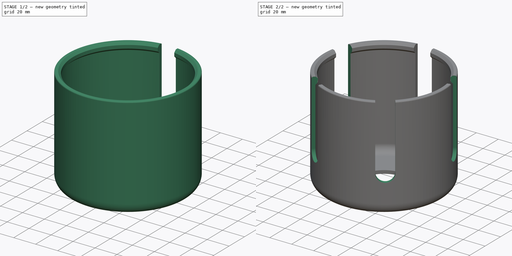
[diagram: build sequence overview — one tinted view per stage of 2, left to right]
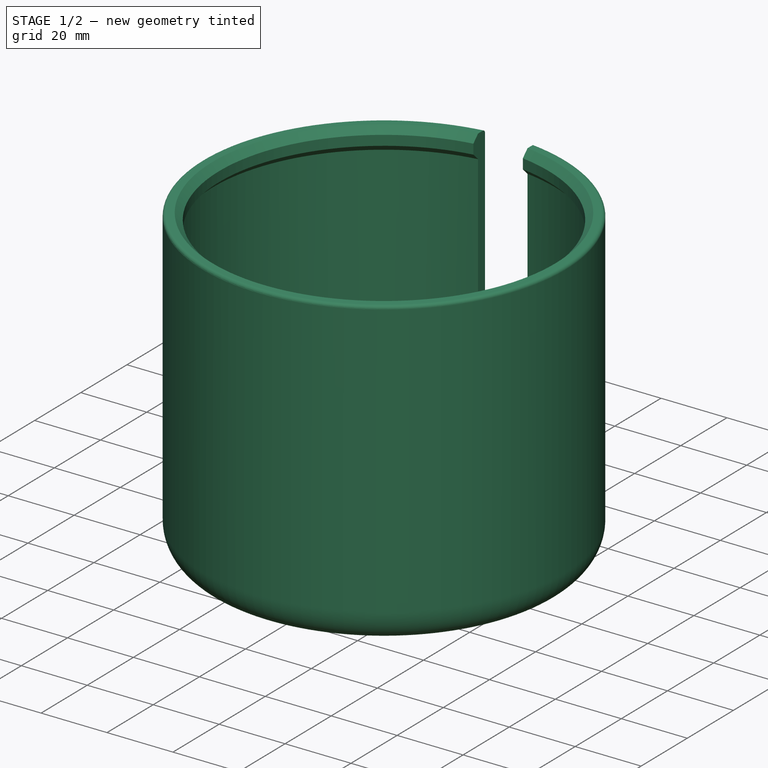
[diagram: stage 1 of 2 — iso view after this stage's code; geometry added in this stage tinted green]
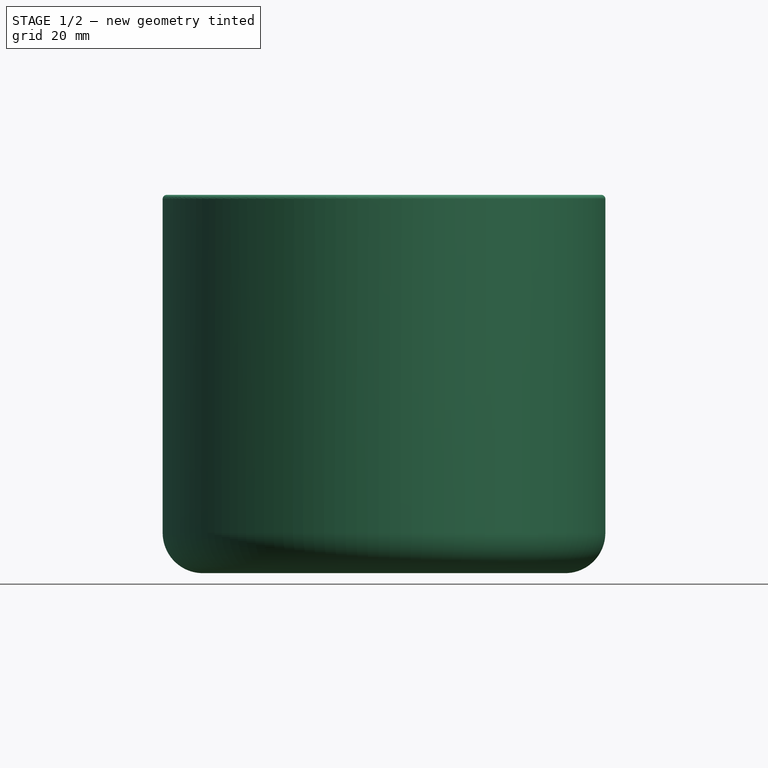
[diagram: stage 1 of 2 — front view after this stage's code; geometry added in this stage tinted green]
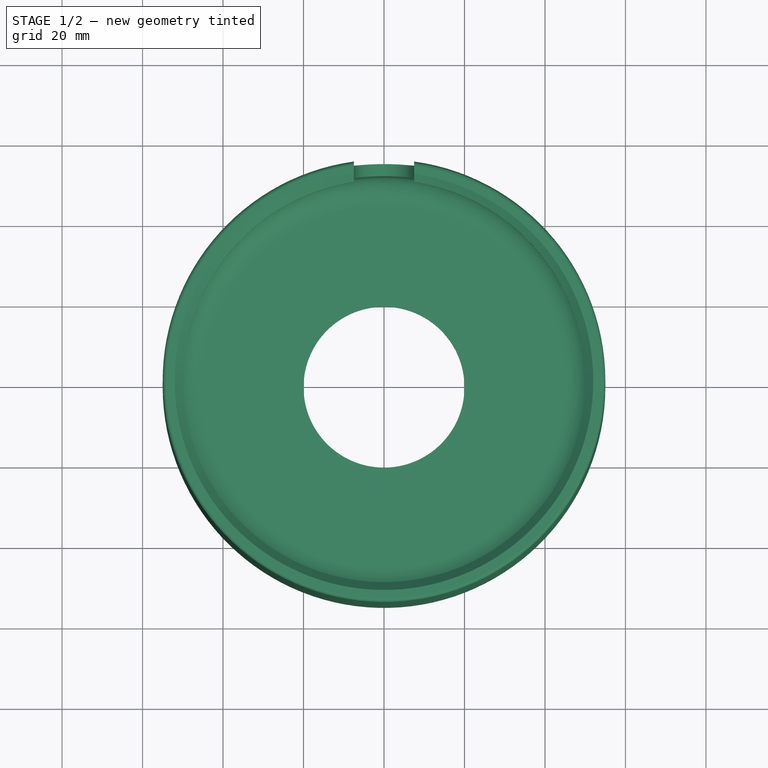
[diagram: stage 1 of 2 — top view after this stage's code; geometry added in this stage tinted green]
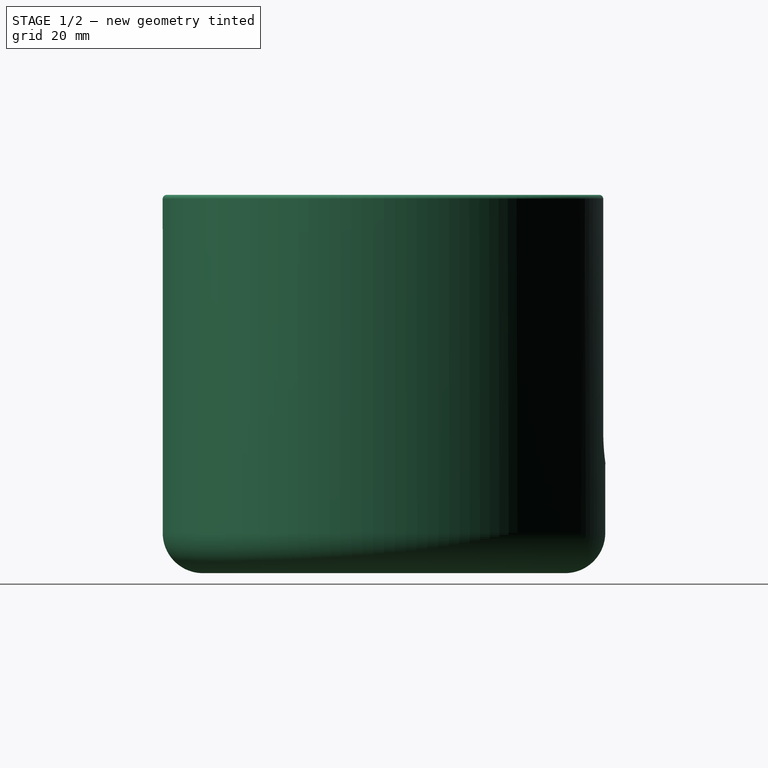
[diagram: stage 1 of 2 — right view after this stage's code; geometry added in this stage tinted green]
FCSTD DOCUMENT  (FreeCAD 0.22R38506 (Git))
Label: 20241013a_notheizung_abdeckung
License: All rights reserved
LicenseURL: http://en.wikipedia.org/wiki/All_rights_reserved
objects: Sketcher::SketchObject×2, PartDesign::Revolution×1, PartDesign::Pocket×1, PartDesign::PolarPattern×1, PartDesign::Body×1, Image::ImagePlane×1
note: 13 computed .brp shape members not serialized (recipe doc carries the construction recipe); baked Part::Feature solids carry a one-line shape summary decoded from their .brp

FEATURE [Sketcher::SketchObject] Sketch
  ArcFitTolerance = 1e-06
  AttachmentSupport = -> [XZ_Plane]
  FullyConstrained = true
  MakeInternals = false
  MapMode = 5
  Placement = pos=(0,0,0) rot=(1,0,0;1.5708rad)
  expr: Constraints[25] = 104 / 2
  expr: Constraints[26] = 100 / 2
  sketch-geometry (16):
    g0: ArcOfCircle CenterX=45 CenterY=10 CenterZ=0 NormalX=0 NormalY=0 NormalZ=1 AngleXU=0 Radius=10 StartAngle=4.71239 EndAngle=6.28319
    g1: ArcOfCircle CenterX=45 CenterY=10 CenterZ=0 NormalX=0 NormalY=0 NormalZ=1 AngleXU=0 Radius=7 StartAngle=4.71239 EndAngle=6.28319
    g2: LineSegment StartX=45 StartY=0 StartZ=0 EndX=20 EndY=0 EndZ=0
    g3: LineSegment StartX=20 StartY=0 StartZ=0 EndX=20 EndY=3 EndZ=0
    g4: LineSegment StartX=20 StartY=3 StartZ=0 EndX=45 EndY=3 EndZ=0
    g5: LineSegment [constr] StartX=45 StartY=10 StartZ=0 EndX=45 EndY=0 EndZ=0
    g6: LineSegment [constr] StartX=45 StartY=10 StartZ=0 EndX=55 EndY=10 EndZ=0
    g7: LineSegment StartX=55 StartY=10 StartZ=0 EndX=55 EndY=93 EndZ=0
    g8: LineSegment StartX=54 StartY=94 StartZ=0 EndX=52 EndY=94 EndZ=0
    g9: LineSegment StartX=52 StartY=94 StartZ=0 EndX=50 EndY=92 EndZ=0
    g10: LineSegment StartX=50 StartY=92 StartZ=0 EndX=50 EndY=89 EndZ=0
    g11: LineSegment StartX=50 StartY=89 StartZ=0 EndX=52 EndY=87 EndZ=0
    g12: LineSegment StartX=52 StartY=87 StartZ=0 EndX=52 EndY=10 EndZ=0
    g13: LineSegment [constr] StartX=52 StartY=87 StartZ=0 EndX=52 EndY=94 EndZ=0
    g14: ArcOfCircle CenterX=54 CenterY=93 CenterZ=0 NormalX=0 NormalY=0 NormalZ=1 AngleXU=0 Radius=1 StartAngle=2.7e-15 EndAngle=1.5708
    g15: GeomPoint [constr] X=55 Y=94 Z=0
  constraints (42):
    c: Coincident(g1,g0)
    c: Tangent(g0,g2) = 1.5708
    c: Coincident(g2,g3)
    c: Coincident(g3,g4)
    c: Coincident(g4,g1)
    c: Horizontal(g4)
    c: Horizontal(g2)
    c: Vertical(g3)
    c: PointOnObject(g0,g-1)
    c: Coincident(g5,g0)
    c: Coincident(g5,g0)
    c: PointOnObject(g1,g5)
    c: Coincident(g6,g0)
    c: Coincident(g6,g0)
    c: Horizontal(g6)
    c: PointOnObject(g1,g6)
    c: Distance(g3,g3) = 3
    c: Tangent(g0,g7) = -1.5708
    c: Horizontal(g8)
    c: Coincident(g8,g9)
    c: Coincident(g9,g10)
    c: Vertical(g10)
    c: Coincident(g10,g11)
    c: Coincident(g12,g1)
    c: Vertical(g12)
    c: DistanceX(g-1,g1) = 52
    c: DistanceX(g-1,g10) = 50
    c: Coincident(g12,g11)
    c: Angle(g11) = -0.785398
    c: Angle(g9) = -2.35619
    c: DistanceY(g10,g10) = 3
    c: Coincident(g13,g11)
    c: Coincident(g13,g8)
    c: Vertical(g13)
    c: PointOnObject(g15,g7)
    c: PointOnObject(g15,g8)
    c: Tangent(g7,g14) = -1.5708
    c: Tangent(g8,g14) = -1.5708
    c: Radius(g14) = 1
    c: Radius(g0) = 10
    c: DistanceX(g-1,g2) = 20
    c: DistanceY(g1,g10) = 86
FEATURE [PartDesign::Revolution] Revolution
  Angle = 360
  Angle2 = 60
  Axis = (0,2e-16,1)
  Base = (0,0,0)
  Placement = pos=(0,0,0) rot=(1,0,0;1.5708rad)
  Profile = -> Sketch
  ReferenceAxis = -> Sketch [V_Axis]
  Reversed = true
  Suppressed = false
  Type = 0
FEATURE [Sketcher::SketchObject] Sketch001
  ArcFitTolerance = 1e-06
  AttachmentSupport = -> [XZ_Plane]
  FullyConstrained = false
  MakeInternals = false
  MapMode = 5
  Placement = pos=(0,0,0) rot=(1,0,0;1.5708rad)
  sketch-geometry (4):
    g0: ArcOfCircle CenterX=0 CenterY=35 CenterZ=0 NormalX=0 NormalY=0 NormalZ=1 AngleXU=0 Radius=7.5 StartAngle=3.14159 EndAngle=6.28319
    g1: ArcOfCircle CenterX=0 CenterY=159.743 CenterZ=0 NormalX=0 NormalY=0 NormalZ=1 AngleXU=0 Radius=7.5 StartAngle=7e-16 EndAngle=3.14159
    g2: LineSegment StartX=-7.5 StartY=35 StartZ=0 EndX=-7.5 EndY=159.743 EndZ=0
    g3: LineSegment StartX=7.5 StartY=35 StartZ=0 EndX=7.5 EndY=159.743 EndZ=0
  constraints (9):
    c: Tangent(g0,g2) = 1.5708
    c: Tangent(g0,g3) = -1.5708
    c: Tangent(g1,g2) = 1.5708
    c: Tangent(g1,g3) = -1.5708
    c: Equal(g0,g1)
    c: Vertical(g3)
    c: PointOnObject(g0,g-2)
    c: DistanceX(g1,g1) = 15
    c: Distance(g0,g-1) = 35
FEATURE [PartDesign::Pocket] Pocket
  BaseFeature = -> Revolution
  Direction = (0,1,-2e-16)
  Length = 5
  Length2 = 5
  Placement = pos=(0,0,0) rot=(1,0,0;1.5708rad)
  Profile = -> Sketch001
  ReferenceAxis = -> Sketch001 [N_Axis]
  Suppressed = false
  Type = 1
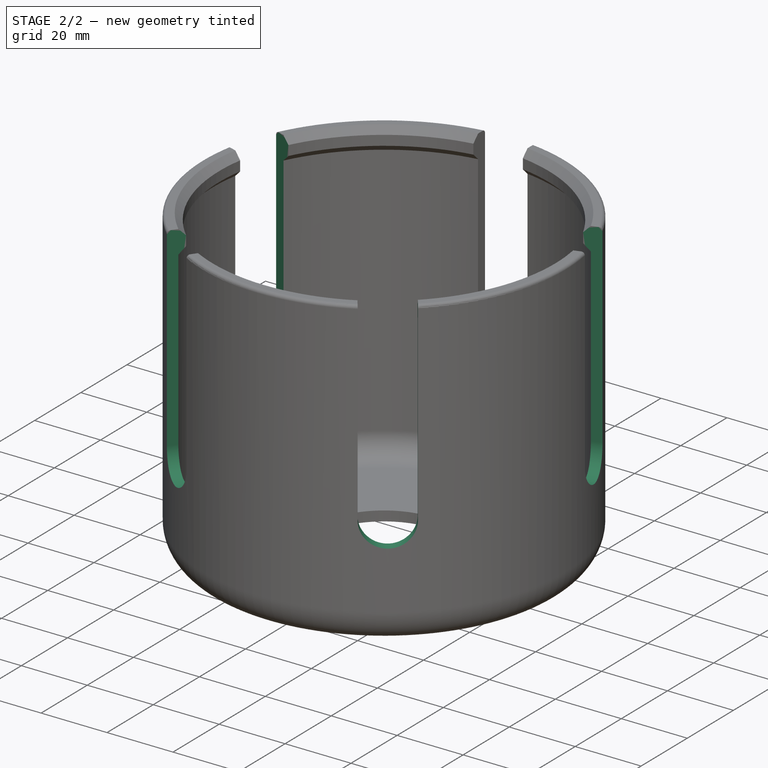
[diagram: stage 2 of 2 — iso view after this stage's code; geometry added in this stage tinted green]
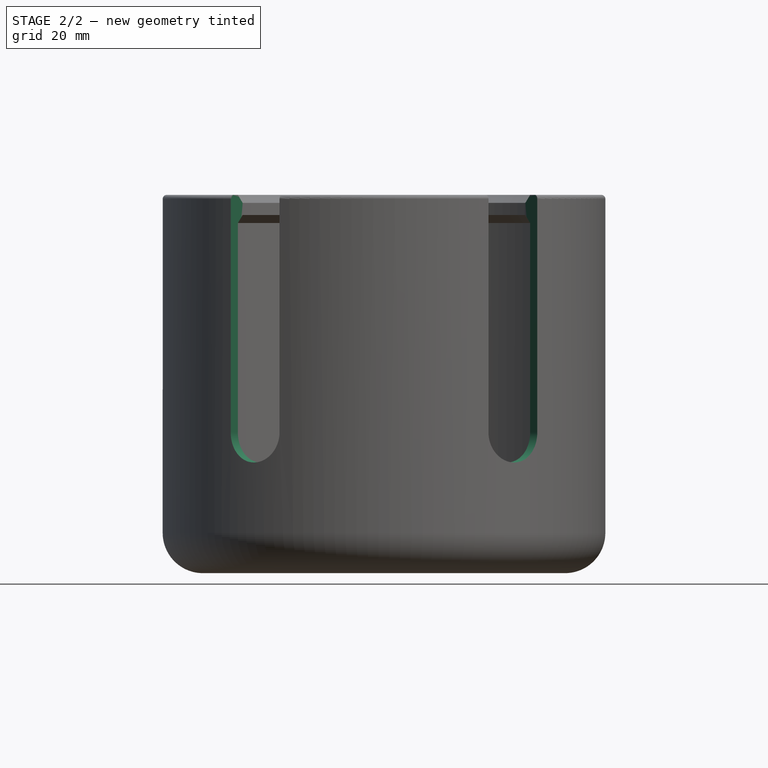
[diagram: stage 2 of 2 — front view after this stage's code; geometry added in this stage tinted green]
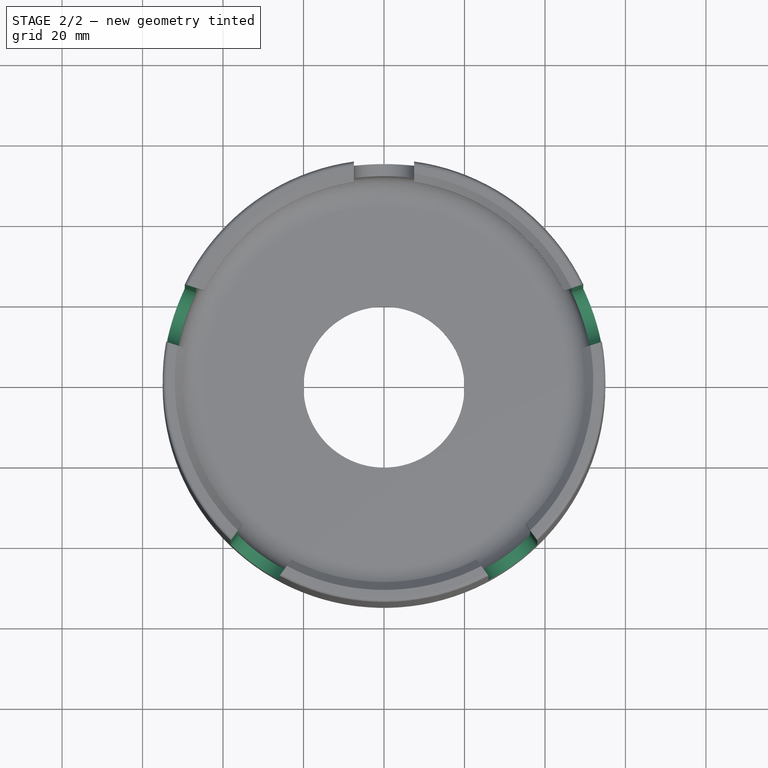
[diagram: stage 2 of 2 — top view after this stage's code; geometry added in this stage tinted green]
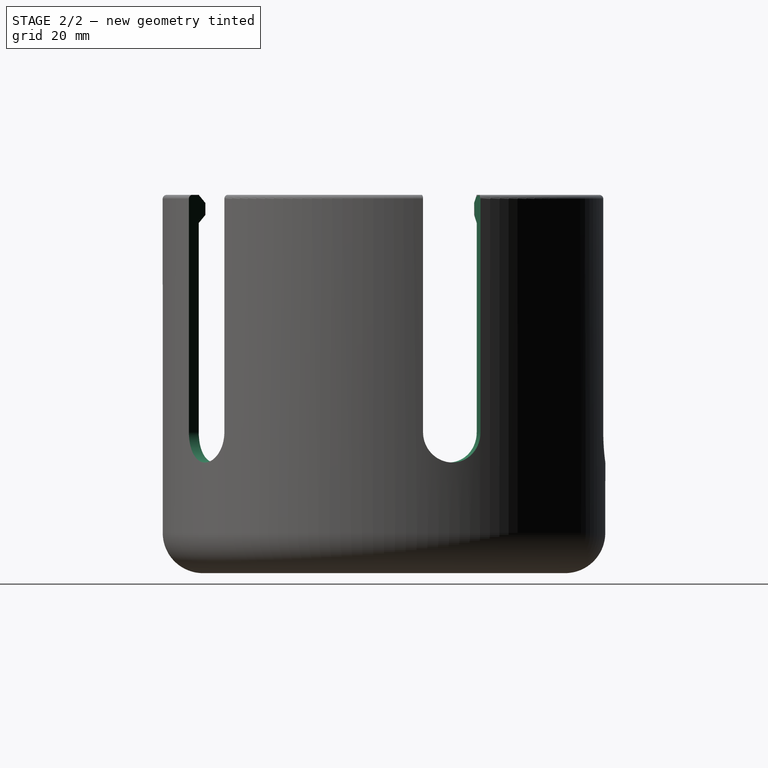
[diagram: stage 2 of 2 — right view after this stage's code; geometry added in this stage tinted green]
FEATURE [PartDesign::PolarPattern] PolarPattern
  Angle = 360
  Axis = -> Z_Axis
  BaseFeature = -> Pocket
  Mode = 0
  Occurrences = 5
  Offset = 120
  Originals = -> [Pocket]
  Placement = pos=(0,0,0) rot=(1,0,0;1.5708rad)
  Suppressed = false
  TransformMode = 0
FEATURE [PartDesign::Body] Body  label="body"
  AllowCompound = false
  Group = -> [Sketch,Revolution,Sketch001,Pocket,PolarPattern]
  Origin = -> Origin
  Tip = -> PolarPattern
FEATURE [Image::ImagePlane] Snap5
  Placement = pos=(0,0,-1) rot=(0,0,1;0rad)
  XSize = 114.62
  YSize = 111.36
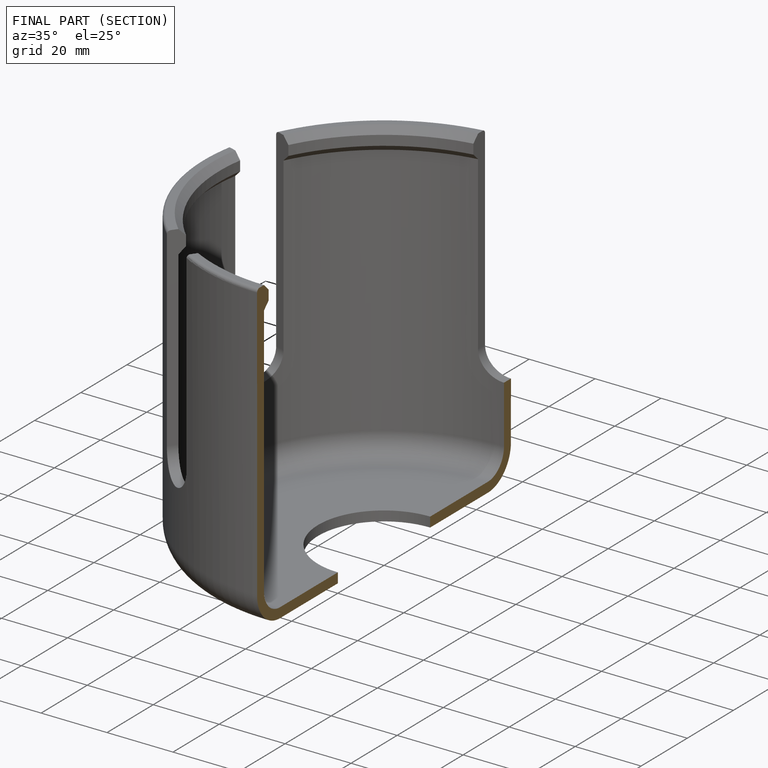
[diagram: finished part — half-section view (interior)]
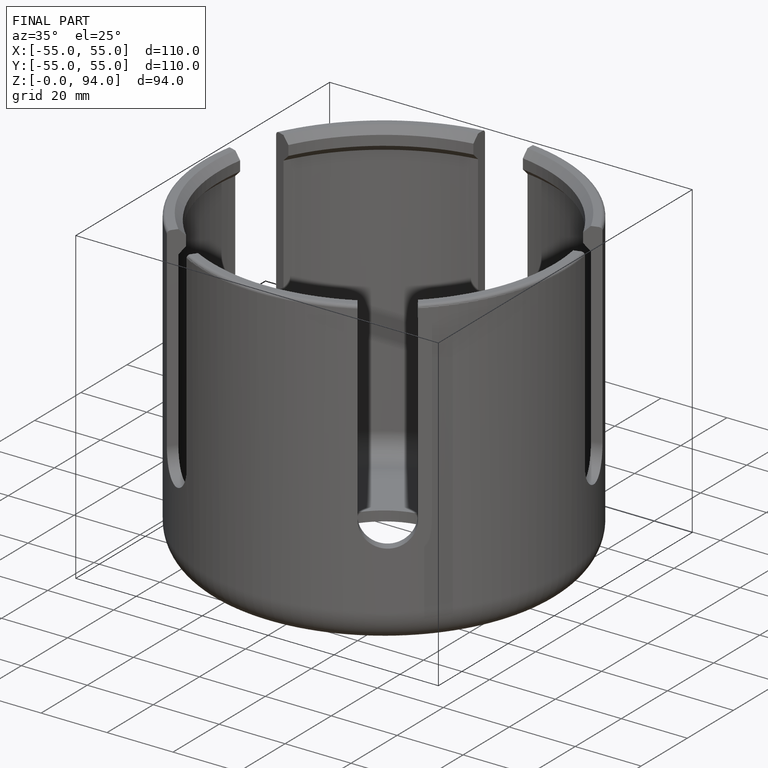
[diagram: finished part — iso view with bounding-box wireframe]
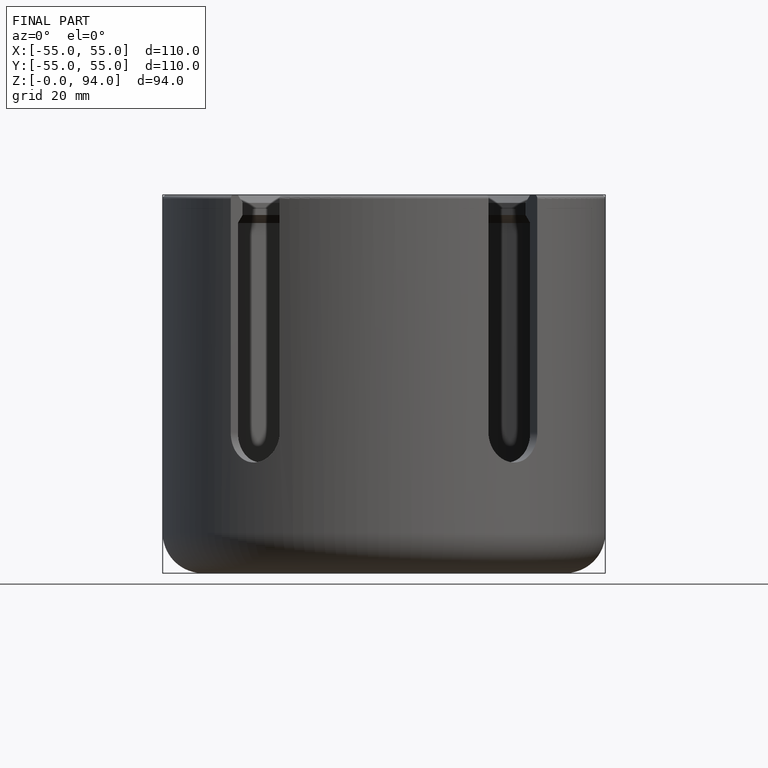
[diagram: finished part — front view with bounding-box wireframe]
